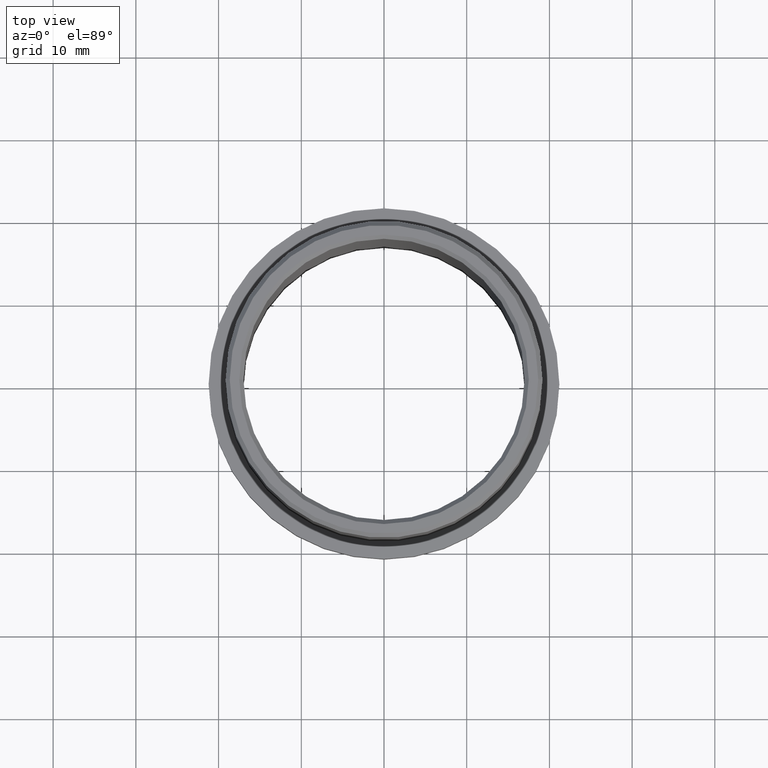
[diagram: clean part render]
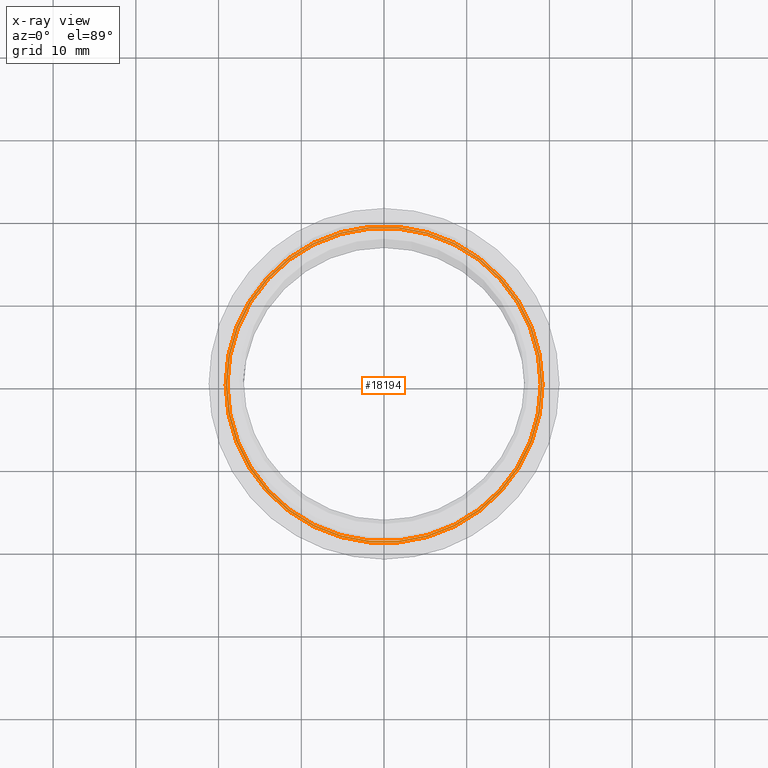
[diagram: x-ray — body ghosted, one internal face saturated and labeled with its STEP entity id]
A machine part, top view, then the same camera in x-ray: the body is ghosted and one INTERNAL B-rep face — a face not visible from any outside direction — is saturated and labeled: STEP entity #18194.
In plain terms, the highlighted planar face has unit normal (0, 0, -1).
Its self-contained STEP definition (entity closure, byte-faithful):
#548 = CARTESIAN_POINT ( 'NONE',  ( 18.95000000000000300, -2.320705684384234700E-015, -5.500000000000000000 ) ) ;
#692 = VERTEX_POINT ( 'NONE', #16144 ) ;
#947 = CARTESIAN_POINT ( 'NONE',  ( 0.0000000000000000000, 0.0000000000000000000, -5.500000000000000000 ) ) ;
#1191 = VERTEX_POINT ( 'NONE', #3305 ) ;
#1213 = DIRECTION ( 'NONE',  ( -0.0000000000000000000, -0.0000000000000000000, 1.000000000000000000 ) ) ;
#1332 = CIRCLE ( 'NONE', #11655, 18.95000000000000300 ) ;
#1455 = CARTESIAN_POINT ( 'NONE',  ( 0.0000000000000000000, 0.0000000000000000000, -5.500000000000000000 ) ) ;
#3305 = CARTESIAN_POINT ( 'NONE',  ( -19.15000000000000200, 0.0000000000000000000, -5.500000000000000000 ) ) ;
#3411 = ORIENTED_EDGE ( 'NONE', *, *, #14935, .T. ) ;
#3603 = ORIENTED_EDGE ( 'NONE', *, *, #16242, .T. ) ;
#4398 = VERTEX_POINT ( 'NONE', #548 ) ;
#4468 = FACE_OUTER_BOUND ( 'NONE', #10096, .T. ) ;
#5721 = CARTESIAN_POINT ( 'NONE',  ( 0.0000000000000000000, 0.0000000000000000000, -5.500000000000000000 ) ) ;
#5750 = CARTESIAN_POINT ( 'NONE',  ( 0.0000000000000000000, 0.0000000000000000000, -5.500000000000000000 ) ) ;
#6129 = AXIS2_PLACEMENT_3D ( 'NONE', #947, #15471, #10890 ) ;
#7655 = FACE_BOUND ( 'NONE', #16024, .T. ) ;
#7716 = DIRECTION ( 'NONE',  ( 1.000000000000000000, 0.0000000000000000000, 0.0000000000000000000 ) ) ;
#7860 = EDGE_CURVE ( 'NONE', #4398, #692, #18193, .T. ) ;
#9247 = CARTESIAN_POINT ( 'NONE',  ( 19.15000000000000200, -2.345198620367181800E-015, -5.500000000000000000 ) ) ;
#10096 = EDGE_LOOP ( 'NONE', ( #3603, #3411 ) ) ;
#10367 = ORIENTED_EDGE ( 'NONE', *, *, #18053, .F. ) ;
#10666 = DIRECTION ( 'NONE',  ( -0.0000000000000000000, -0.0000000000000000000, 1.000000000000000000 ) ) ;
#10890 = DIRECTION ( 'NONE',  ( 1.000000000000000000, 0.0000000000000000000, 0.0000000000000000000 ) ) ;
#11655 = AXIS2_PLACEMENT_3D ( 'NONE', #5750, #1213, #15135 ) ;
#11953 = DIRECTION ( 'NONE',  ( -0.0000000000000000000, -0.0000000000000000000, 1.000000000000000000 ) ) ;
#13380 = AXIS2_PLACEMENT_3D ( 'NONE', #14906, #16206, #17722 ) ;
#14906 = CARTESIAN_POINT ( 'NONE',  ( 0.0000000000000000000, 0.0000000000000000000, -5.500000000000000000 ) ) ;
#14935 = EDGE_CURVE ( 'NONE', #19587, #1191, #15567, .T. ) ;
#15135 = DIRECTION ( 'NONE',  ( 1.000000000000000000, 0.0000000000000000000, 0.0000000000000000000 ) ) ;
#15471 = DIRECTION ( 'NONE',  ( 0.0000000000000000000, 0.0000000000000000000, -1.000000000000000000 ) ) ;
#15567 = CIRCLE ( 'NONE', #16957, 19.15000000000000200 ) ;
#15944 = ORIENTED_EDGE ( 'NONE', *, *, #7860, .F. ) ;
#16024 = EDGE_LOOP ( 'NONE', ( #10367, #15944 ) ) ;
#16144 = CARTESIAN_POINT ( 'NONE',  ( -18.95000000000000300, 0.0000000000000000000, -5.500000000000000000 ) ) ;
#16206 = DIRECTION ( 'NONE',  ( -0.0000000000000000000, -0.0000000000000000000, 1.000000000000000000 ) ) ;
#16242 = EDGE_CURVE ( 'NONE', #1191, #19587, #18426, .T. ) ;
#16462 = DIRECTION ( 'NONE',  ( 1.000000000000000000, 0.0000000000000000000, 0.0000000000000000000 ) ) ;
#16744 = PLANE ( 'NONE',  #6129 ) ;
#16957 = AXIS2_PLACEMENT_3D ( 'NONE', #1455, #10666, #7716 ) ;
#17722 = DIRECTION ( 'NONE',  ( 1.000000000000000000, 0.0000000000000000000, 0.0000000000000000000 ) ) ;
#18053 = EDGE_CURVE ( 'NONE', #692, #4398, #1332, .T. ) ;
#18193 = CIRCLE ( 'NONE', #13380, 18.95000000000000300 ) ;
#18194 = ADVANCED_FACE ( 'NONE', ( #7655, #4468 ), #16744, .F. ) ;
#18426 = CIRCLE ( 'NONE', #19965, 19.15000000000000200 ) ;
#19587 = VERTEX_POINT ( 'NONE', #9247 ) ;
#19965 = AXIS2_PLACEMENT_3D ( 'NONE', #5721, #11953, #16462 ) ;